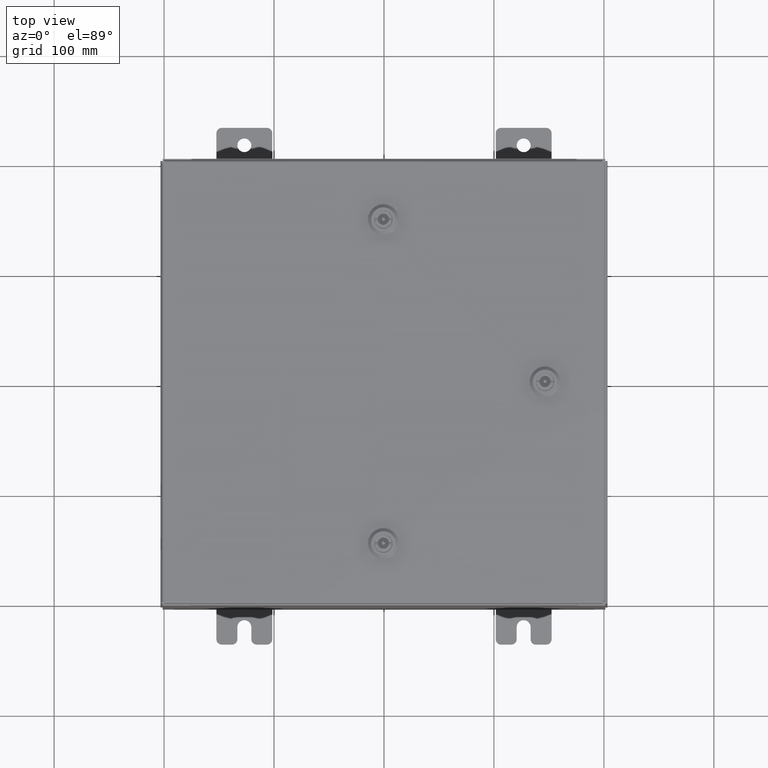
[diagram: clean part render]
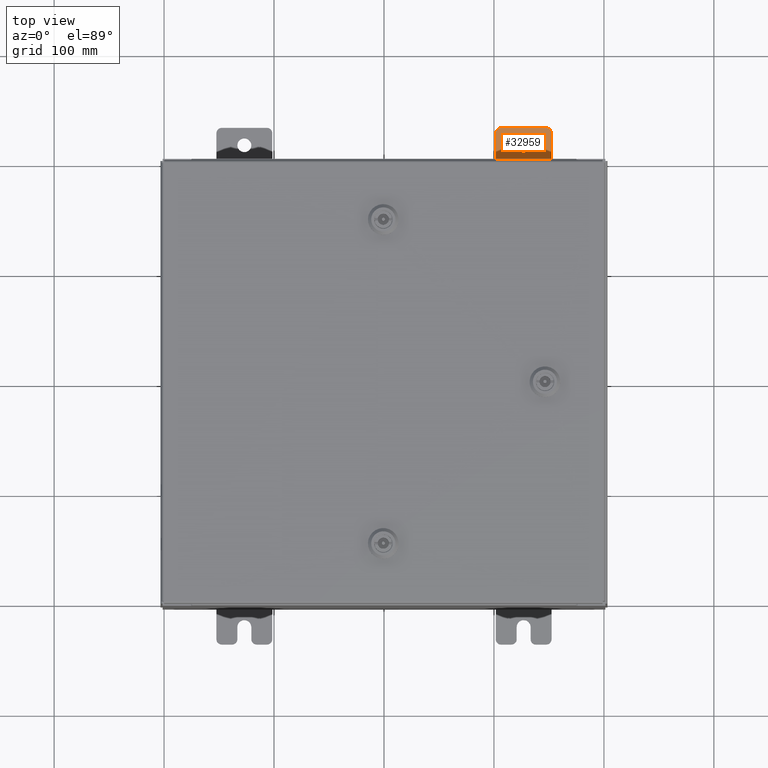
[diagram: same view with one face highlighted and labeled with its STEP entity id]
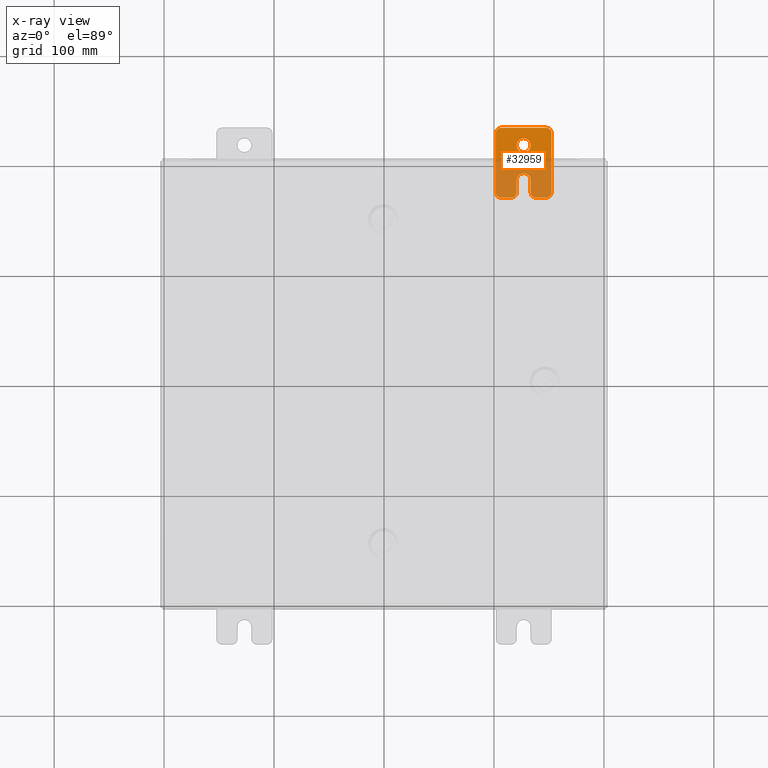
[diagram: x-ray of the same camera — body ghosted, the highlighted face saturated]
A machine part, top view. The second image highlights one B-rep face of the part: STEP entity #32959.
The next image is the same camera in x-ray: the body ghosted, the highlighted face saturated — about 54% of this face is hidden behind the body in this view.
In plain terms, the highlighted planar face has unit normal (0, 0, 1).
Its self-contained STEP definition (entity closure, byte-faithful):
#405 = DIRECTION ( 'NONE',  ( 1.000000000000000000, 0.0000000000000000000, -0.0000000000000000000 ) ) ;
#440 = LINE ( 'NONE', #29296, #24601 ) ;
#857 = LINE ( 'NONE', #44054, #52184 ) ;
#2446 = VERTEX_POINT ( 'NONE', #5468 ) ;
#2911 = DIRECTION ( 'NONE',  ( 6.556435184794182400E-016, 1.000000000000000000, 0.0000000000000000000 ) ) ;
#3234 = DIRECTION ( 'NONE',  ( 0.0000000000000000000, 0.0000000000000000000, -1.000000000000000000 ) ) ;
#3240 = CARTESIAN_POINT ( 'NONE',  ( 6.829619984160658000E-017, -1.250000000000003800, 0.2500000000000005000 ) ) ;
#3923 = CARTESIAN_POINT ( 'NONE',  ( 4.780733988912460100E-016, -0.6249999999999993300, -0.2499999999999998600 ) ) ;
#4228 = AXIS2_PLACEMENT_3D ( 'NONE', #49065, #20223, #53930 ) ;
#4589 = DIRECTION ( 'NONE',  ( 1.000000000000000000, -0.0000000000000000000, -5.163192708025532000E-017 ) ) ;
#4795 = CARTESIAN_POINT ( 'NONE',  ( 0.0000000000000000000, -1.060000000000001200, 0.9999999999999988900 ) ) ;
#5125 = DIRECTION ( 'NONE',  ( -1.000000000000000000, 6.523827964459549700E-016, 5.163192708025532000E-017 ) ) ;
#5155 = VECTOR ( 'NONE', #2911, 39.37007874015748100 ) ;
#5218 = CARTESIAN_POINT ( 'NONE',  ( 3.910348609313009100E-016, 0.6249999999999992200, -0.2499999999999999200 ) ) ;
#5468 = CARTESIAN_POINT ( 'NONE',  ( 1.928684683526964400E-016, -1.060000000000003400, -0.2499999999999994400 ) ) ;
#5648 = DIRECTION ( 'NONE',  ( -6.556435184794182400E-016, -1.000000000000000000, -1.639108796198545600E-016 ) ) ;
#5938 = VERTEX_POINT ( 'NONE', #49990 ) ;
#6556 = EDGE_CURVE ( 'NONE', #45013, #45589, #10573, .T. ) ;
#6561 = CARTESIAN_POINT ( 'NONE',  ( 0.0000000000000000000, 0.0000000000000000000, 0.0000000000000000000 ) ) ;
#7471 = EDGE_CURVE ( 'NONE', #9594, #31901, #50534, .T. ) ;
#9055 = DIRECTION ( 'NONE',  ( 0.0000000000000000000, 1.639108796198553600E-015, 1.000000000000000000 ) ) ;
#9594 = VERTEX_POINT ( 'NONE', #37498 ) ;
#9908 = EDGE_CURVE ( 'NONE', #5938, #31552, #41318, .T. ) ;
#10071 = FACE_BOUND ( 'NONE', #16180, .T. ) ;
#10573 = CIRCLE ( 'NONE', #48533, 0.1900000000000011100 ) ;
#11108 = EDGE_CURVE ( 'NONE', #45664, #30147, #57888, .T. ) ;
#11247 = DIRECTION ( 'NONE',  ( 0.0000000000000000000, -1.639108796198553600E-015, -1.000000000000000000 ) ) ;
#11856 = ORIENTED_EDGE ( 'NONE', *, *, #29757, .T. ) ;
#12651 = VERTEX_POINT ( 'NONE', #26795 ) ;
#15459 = EDGE_CURVE ( 'NONE', #28757, #55865, #23748, .T. ) ;
#15476 = CARTESIAN_POINT ( 'NONE',  ( 0.0000000000000000000, -1.060000000000004100, -0.8100000000000050500 ) ) ;
#15511 = ORIENTED_EDGE ( 'NONE', *, *, #6556, .T. ) ;
#15786 = CARTESIAN_POINT ( 'NONE',  ( 0.0000000000000000000, -1.060000000000002100, 0.4400000000000016700 ) ) ;
#15839 = EDGE_CURVE ( 'NONE', #44564, #33780, #25958, .T. ) ;
#15948 = EDGE_LOOP ( 'NONE', ( #16908, #25072, #52961, #48742, #21688, #26891, #43061, #19470, #11856, #15511, #45146, #46921, #30682, #54585 ) ) ;
#16180 = EDGE_LOOP ( 'NONE', ( #22075, #31469 ) ) ;
#16637 = AXIS2_PLACEMENT_3D ( 'NONE', #33522, #4589, #38353 ) ;
#16908 = ORIENTED_EDGE ( 'NONE', *, *, #62407, .T. ) ;
#19470 = ORIENTED_EDGE ( 'NONE', *, *, #31484, .T. ) ;
#20223 = DIRECTION ( 'NONE',  ( 1.000000000000000000, -0.0000000000000000000, -5.163192708025532000E-017 ) ) ;
#20304 = VECTOR ( 'NONE', #29172, 39.37007874015748100 ) ;
#20362 = DIRECTION ( 'NONE',  ( 0.0000000000000000000, 0.0000000000000000000, -1.000000000000000000 ) ) ;
#20654 = DIRECTION ( 'NONE',  ( 0.0000000000000000000, 0.0000000000000000000, -1.000000000000000000 ) ) ;
#20939 = EDGE_CURVE ( 'NONE', #33780, #34322, #38791, .T. ) ;
#21231 = CARTESIAN_POINT ( 'NONE',  ( 0.0000000000000000000, 1.249999999999997300, 0.8099999999999935000 ) ) ;
#21688 = ORIENTED_EDGE ( 'NONE', *, *, #30021, .T. ) ;
#22075 = ORIENTED_EDGE ( 'NONE', *, *, #40109, .F. ) ;
#22208 = CARTESIAN_POINT ( 'NONE',  ( 0.0000000000000000000, 1.059999999999996500, 0.9999999999999953400 ) ) ;
#22429 = AXIS2_PLACEMENT_3D ( 'NONE', #6561, #54882, #25970 ) ;
#23748 = CIRCLE ( 'NONE', #4228, 0.2499999999999999200 ) ;
#23918 = CIRCLE ( 'NONE', #25178, 0.1900000000000011100 ) ;
#23931 = CARTESIAN_POINT ( 'NONE',  ( 4.168508244714285900E-016, 0.6249999999999992200, 0.2499999999999999200 ) ) ;
#24329 = AXIS2_PLACEMENT_3D ( 'NONE', #15786, #49505, #20654 ) ;
#24456 = DIRECTION ( 'NONE',  ( 0.0000000000000000000, 1.000000000000000000, -1.639108796198558100E-015 ) ) ;
#24601 = VECTOR ( 'NONE', #24456, 39.37007874015748100 ) ;
#25072 = ORIENTED_EDGE ( 'NONE', *, *, #11108, .T. ) ;
#25178 = AXIS2_PLACEMENT_3D ( 'NONE', #61097, #32155, #3234 ) ;
#25766 = PLANE ( 'NONE',  #22429 ) ;
#25958 = LINE ( 'NONE', #33100, #51624 ) ;
#25970 = DIRECTION ( 'NONE',  ( -0.0000000000000000000, 0.0000000000000000000, -1.000000000000000000 ) ) ;
#26795 = CARTESIAN_POINT ( 'NONE',  ( 0.0000000000000000000, 1.059999999999993400, -1.000000000000010000 ) ) ;
#26891 = ORIENTED_EDGE ( 'NONE', *, *, #7471, .T. ) ;
#28437 = CARTESIAN_POINT ( 'NONE',  ( 0.0000000000000000000, -1.060000000000003400, -0.4400000000000005000 ) ) ;
#28757 = VERTEX_POINT ( 'NONE', #23931 ) ;
#28841 = EDGE_CURVE ( 'NONE', #30147, #5938, #57260, .T. ) ;
#28846 = CARTESIAN_POINT ( 'NONE',  ( 0.0000000000000000000, 1.059999999999996300, 0.8099999999999938400 ) ) ;
#29172 = DIRECTION ( 'NONE',  ( 0.0000000000000000000, -1.639108796198553600E-015, -1.000000000000000000 ) ) ;
#29296 = CARTESIAN_POINT ( 'NONE',  ( 0.0000000000000000000, -1.250000000000005600, -1.000000000000006200 ) ) ;
#29299 = CARTESIAN_POINT ( 'NONE',  ( 0.0000000000000000000, -1.060000000000001600, 0.8099999999999978300 ) ) ;
#29757 = EDGE_CURVE ( 'NONE', #58506, #45013, #33883, .T. ) ;
#30021 = EDGE_CURVE ( 'NONE', #31552, #9594, #53489, .T. ) ;
#30147 = VERTEX_POINT ( 'NONE', #33856 ) ;
#30427 = AXIS2_PLACEMENT_3D ( 'NONE', #28437, #62224, #33304 ) ;
#30682 = ORIENTED_EDGE ( 'NONE', *, *, #15839, .T. ) ;
#31469 = ORIENTED_EDGE ( 'NONE', *, *, #15459, .F. ) ;
#31484 = EDGE_CURVE ( 'NONE', #2446, #58506, #41116, .T. ) ;
#31552 = VERTEX_POINT ( 'NONE', #48188 ) ;
#31901 = VERTEX_POINT ( 'NONE', #3923 ) ;
#32155 = DIRECTION ( 'NONE',  ( 1.000000000000000000, 0.0000000000000000000, -0.0000000000000000000 ) ) ;
#32917 = CARTESIAN_POINT ( 'NONE',  ( 0.0000000000000000000, -1.060000000000004500, -1.000000000000006400 ) ) ;
#32959 = ADVANCED_FACE ( 'NONE', ( #10071, #34226 ), #25766, .T. ) ;
#33100 = CARTESIAN_POINT ( 'NONE',  ( 0.0000000000000000000, 1.249999999999994200, -1.000000000000010400 ) ) ;
#33304 = DIRECTION ( 'NONE',  ( 0.0000000000000000000, 0.0000000000000000000, -1.000000000000000000 ) ) ;
#33522 = CARTESIAN_POINT ( 'NONE',  ( 4.039428427013647300E-016, 0.6249999999999992200, -9.783840404509077400E-018 ) ) ;
#33709 = DIRECTION ( 'NONE',  ( 0.0000000000000000000, 0.0000000000000000000, -1.000000000000000000 ) ) ;
#33780 = VERTEX_POINT ( 'NONE', #21231 ) ;
#33856 = CARTESIAN_POINT ( 'NONE',  ( 0.0000000000000000000, -1.250000000000002400, 0.8099999999999980500 ) ) ;
#33883 = LINE ( 'NONE', #44985, #58069 ) ;
#34066 = CARTESIAN_POINT ( 'NONE',  ( 4.780733988912460100E-016, -0.6249999999999993300, 5.858939755051854500E-017 ) ) ;
#34159 = DIRECTION ( 'NONE',  ( 0.0000000000000000000, 0.0000000000000000000, -1.000000000000000000 ) ) ;
#34226 = FACE_OUTER_BOUND ( 'NONE', #15948, .T. ) ;
#34322 = VERTEX_POINT ( 'NONE', #22208 ) ;
#37294 = LINE ( 'NONE', #54590, #58484 ) ;
#37498 = CARTESIAN_POINT ( 'NONE',  ( 0.0000000000000000000, -0.6249999999999992200, 0.2500000000000005000 ) ) ;
#38353 = DIRECTION ( 'NONE',  ( -5.163192708025533800E-017, 0.0000000000000000000, -1.000000000000000000 ) ) ;
#38791 = CIRCLE ( 'NONE', #38804, 0.1900000000000011100 ) ;
#38804 = AXIS2_PLACEMENT_3D ( 'NONE', #28846, #62627, #33709 ) ;
#38884 = DIRECTION ( 'NONE',  ( -6.523827964459551700E-016, -1.000000000000000000, 0.0000000000000000000 ) ) ;
#39808 = CARTESIAN_POINT ( 'NONE',  ( 0.0000000000000000000, 1.249999999999994700, -0.8100000000000092700 ) ) ;
#40018 = DIRECTION ( 'NONE',  ( 0.0000000000000000000, -1.000000000000000000, 1.639108796198558100E-015 ) ) ;
#40109 = EDGE_CURVE ( 'NONE', #55865, #28757, #55807, .T. ) ;
#41116 = CIRCLE ( 'NONE', #30427, 0.1900000000000011100 ) ;
#41318 = CIRCLE ( 'NONE', #24329, 0.1900000000000011400 ) ;
#43061 = ORIENTED_EDGE ( 'NONE', *, *, #47574, .T. ) ;
#43342 = AXIS2_PLACEMENT_3D ( 'NONE', #29299, #405, #34159 ) ;
#43432 = EDGE_CURVE ( 'NONE', #12651, #44564, #23918, .T. ) ;
#44054 = CARTESIAN_POINT ( 'NONE',  ( 4.780733988912460100E-016, -0.6249999999999993300, -0.2499999999999993900 ) ) ;
#44564 = VERTEX_POINT ( 'NONE', #39808 ) ;
#44985 = CARTESIAN_POINT ( 'NONE',  ( 0.0000000000000000000, -1.250000000000002200, 0.9999999999999992200 ) ) ;
#45013 = VERTEX_POINT ( 'NONE', #56889 ) ;
#45146 = ORIENTED_EDGE ( 'NONE', *, *, #55843, .T. ) ;
#45589 = VERTEX_POINT ( 'NONE', #32917 ) ;
#45664 = VERTEX_POINT ( 'NONE', #4795 ) ;
#46921 = ORIENTED_EDGE ( 'NONE', *, *, #43432, .T. ) ;
#47574 = EDGE_CURVE ( 'NONE', #31901, #2446, #857, .T. ) ;
#48188 = CARTESIAN_POINT ( 'NONE',  ( 1.928684683526972300E-016, -1.060000000000002100, 0.2500000000000005000 ) ) ;
#48533 = AXIS2_PLACEMENT_3D ( 'NONE', #15476, #49206, #20362 ) ;
#48742 = ORIENTED_EDGE ( 'NONE', *, *, #9908, .T. ) ;
#49065 = CARTESIAN_POINT ( 'NONE',  ( 4.039428427013647300E-016, 0.6249999999999992200, -9.783840404509077400E-018 ) ) ;
#49206 = DIRECTION ( 'NONE',  ( 1.000000000000000000, 0.0000000000000000000, -0.0000000000000000000 ) ) ;
#49505 = DIRECTION ( 'NONE',  ( 1.000000000000000000, 0.0000000000000000000, -0.0000000000000000000 ) ) ;
#49990 = CARTESIAN_POINT ( 'NONE',  ( 0.0000000000000000000, -1.250000000000003100, 0.4400000000000020000 ) ) ;
#50534 = CIRCLE ( 'NONE', #59119, 0.2499999999999999200 ) ;
#51624 = VECTOR ( 'NONE', #9055, 39.37007874015748100 ) ;
#52184 = VECTOR ( 'NONE', #5648, 39.37007874015748100 ) ;
#52961 = ORIENTED_EDGE ( 'NONE', *, *, #28841, .T. ) ;
#53220 = CARTESIAN_POINT ( 'NONE',  ( 0.0000000000000000000, -1.250000000000002200, 0.9999999999999992200 ) ) ;
#53489 = LINE ( 'NONE', #3240, #5155 ) ;
#53930 = DIRECTION ( 'NONE',  ( -5.163192708025533800E-017, 0.0000000000000000000, -1.000000000000000000 ) ) ;
#54508 = CARTESIAN_POINT ( 'NONE',  ( 0.0000000000000000000, -1.250000000000004700, -0.4400000000000002200 ) ) ;
#54585 = ORIENTED_EDGE ( 'NONE', *, *, #20939, .T. ) ;
#54590 = CARTESIAN_POINT ( 'NONE',  ( 0.0000000000000000000, 1.249999999999997600, 0.9999999999999951200 ) ) ;
#54882 = DIRECTION ( 'NONE',  ( 1.000000000000000000, 0.0000000000000000000, -0.0000000000000000000 ) ) ;
#55807 = CIRCLE ( 'NONE', #16637, 0.2499999999999999200 ) ;
#55843 = EDGE_CURVE ( 'NONE', #45589, #12651, #440, .T. ) ;
#55865 = VERTEX_POINT ( 'NONE', #5218 ) ;
#56889 = CARTESIAN_POINT ( 'NONE',  ( 0.0000000000000000000, -1.250000000000005300, -0.8100000000000047200 ) ) ;
#57260 = LINE ( 'NONE', #53220, #20304 ) ;
#57888 = CIRCLE ( 'NONE', #43342, 0.1900000000000011100 ) ;
#58069 = VECTOR ( 'NONE', #11247, 39.37007874015748100 ) ;
#58484 = VECTOR ( 'NONE', #40018, 39.37007874015748100 ) ;
#58506 = VERTEX_POINT ( 'NONE', #54508 ) ;
#59119 = AXIS2_PLACEMENT_3D ( 'NONE', #34066, #5125, #38884 ) ;
#61097 = CARTESIAN_POINT ( 'NONE',  ( 0.0000000000000000000, 1.059999999999993600, -0.8100000000000089400 ) ) ;
#62224 = DIRECTION ( 'NONE',  ( 1.000000000000000000, 0.0000000000000000000, -0.0000000000000000000 ) ) ;
#62407 = EDGE_CURVE ( 'NONE', #34322, #45664, #37294, .T. ) ;
#62627 = DIRECTION ( 'NONE',  ( 1.000000000000000000, 0.0000000000000000000, -0.0000000000000000000 ) ) ;